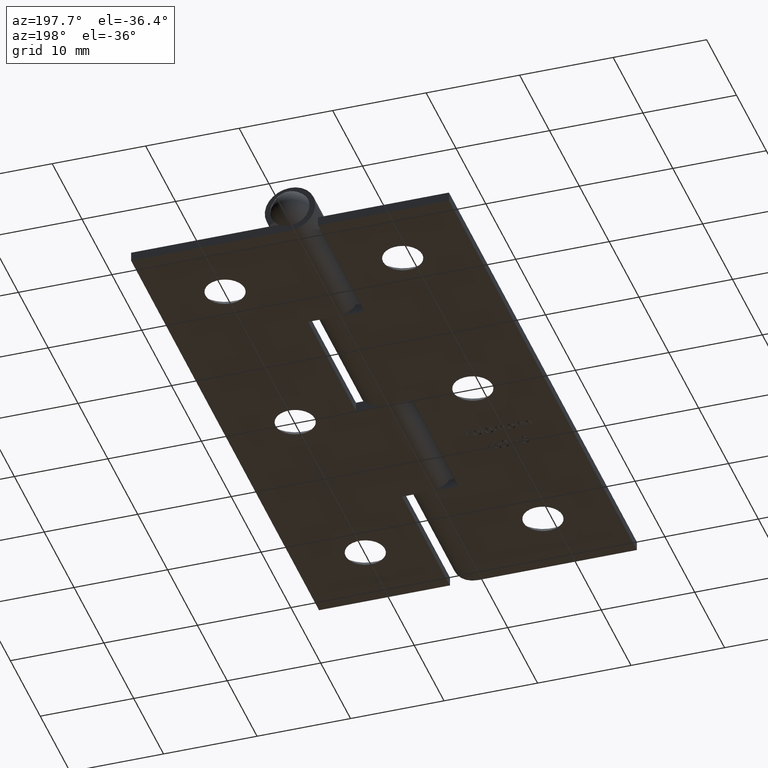
[diagram: clean part render]
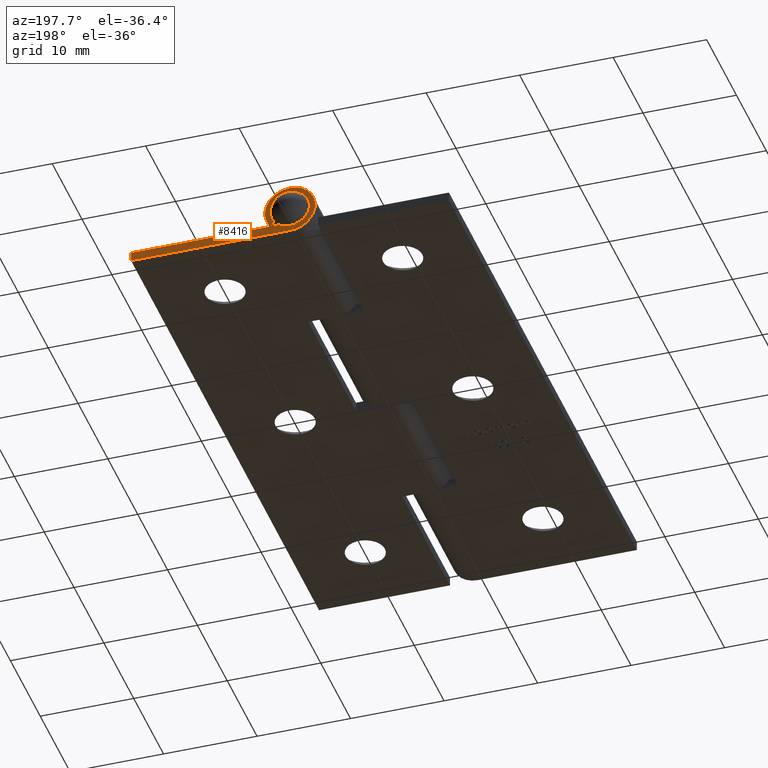
[diagram: same view with one face highlighted and labeled with its STEP entity id]
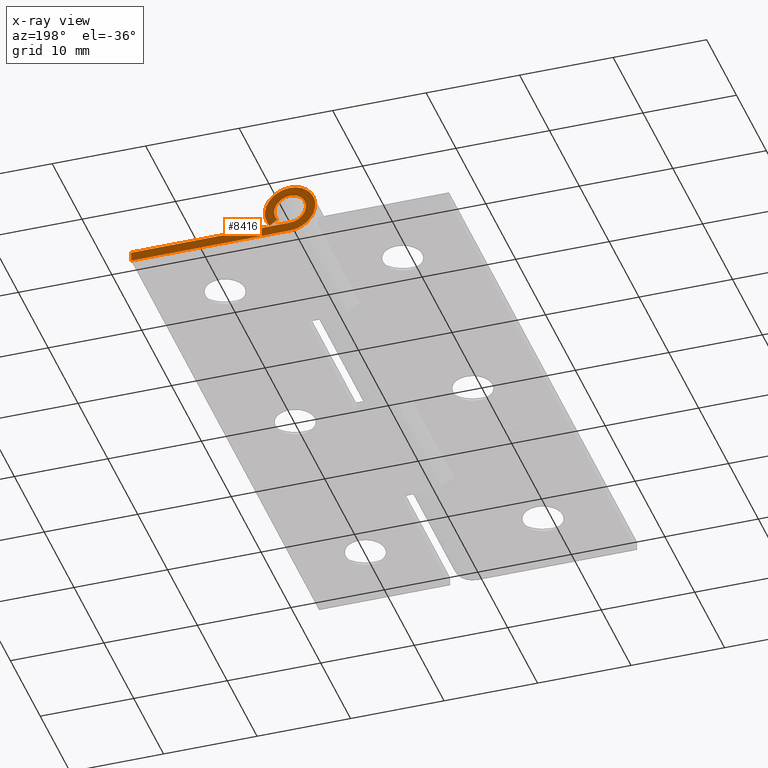
[diagram: x-ray of the same camera — body ghosted, the highlighted face saturated]
A machine part, auxiliary view. The second image highlights one B-rep face of the part: STEP entity #8416.
The next image is the same camera in x-ray: the body ghosted, the highlighted face saturated — about 0% of this face is hidden behind the body in this view.
In plain terms, the highlighted planar face has unit normal (0, 1, 0).
Its self-contained STEP definition (entity closure, byte-faithful):
#15 = CARTESIAN_POINT ( 'NONE',  ( -2.700000000000000178, -31.50000000000000000, 2.700000000000000178 ) ) ;
#46 = DIRECTION ( 'NONE',  ( -0.000000000000000000, -0.000000000000000000, 1.000000000000000000 ) ) ;
#272 = EDGE_CURVE ( 'NONE', #9687, #2001, #5282, .T. ) ;
#430 = CARTESIAN_POINT ( 'NONE',  ( -4.874856317093154701, -31.50000000000000000, 1.100000000000001199 ) ) ;
#602 = EDGE_CURVE ( 'NONE', #9249, #4822, #9213, .T. ) ;
#829 = CARTESIAN_POINT ( 'NONE',  ( -2.700000000000000178, -31.50000000000000000, 2.700000000000000178 ) ) ;
#1122 = CARTESIAN_POINT ( 'NONE',  ( -2.700000000000000178, -31.50000000000000000, 0.000000000000000000 ) ) ;
#1474 = ORIENTED_EDGE ( 'NONE', *, *, #11146, .F. ) ;
#2001 = VERTEX_POINT ( 'NONE', #7087 ) ;
#2282 = CARTESIAN_POINT ( 'NONE',  ( -4.069353977429024383, -31.50000000000000000, 1.692592592592593315 ) ) ;
#2466 = DIRECTION ( 'NONE',  ( -1.000000000000000000, 0.000000000000000000, 1.275531967630005245E-16 ) ) ;
#3009 = VECTOR ( 'NONE', #5865, 1000.000000000000000 ) ;
#3070 = CARTESIAN_POINT ( 'NONE',  ( -2.700000000000000178, -31.50000000000000000, 1.000000000000000000 ) ) ;
#3816 = CARTESIAN_POINT ( 'NONE',  ( -4.874856317093154701, -31.50000000000000000, 1.100000000000001199 ) ) ;
#3868 = EDGE_CURVE ( 'NONE', #4822, #9687, #8749, .T. ) ;
#4082 = DIRECTION ( 'NONE',  ( -0.8055023396641315392, -0.000000000000000000, -0.5925925925925922266 ) ) ;
#4128 = ORIENTED_EDGE ( 'NONE', *, *, #9682, .F. ) ;
#4247 = CARTESIAN_POINT ( 'NONE',  ( -2.700000000000000178, -31.50000000000000000, 0.000000000000000000 ) ) ;
#4361 = EDGE_LOOP ( 'NONE', ( #7570, #6854, #1474, #4128, #7360, #7406 ) ) ;
#4478 = FACE_OUTER_BOUND ( 'NONE', #4361, .T. ) ;
#4558 = DIRECTION ( 'NONE',  ( 0.000000000000000000, -0.000000000000000000, -1.000000000000000000 ) ) ;
#4822 = VERTEX_POINT ( 'NONE', #3816 ) ;
#5282 = LINE ( 'NONE', #4247, #6556 ) ;
#5826 = CARTESIAN_POINT ( 'NONE',  ( -2.700000000000000178, -31.50000000000000000, 1.000000000000000000 ) ) ;
#5865 = DIRECTION ( 'NONE',  ( 1.000000000000000000, -0.000000000000000000, -1.275531967630005245E-16 ) ) ;
#6005 = VECTOR ( 'NONE', #4082, 1000.000000000000114 ) ;
#6199 = EDGE_CURVE ( 'NONE', #2001, #7141, #9140, .T. ) ;
#6399 = LINE ( 'NONE', #5826, #3009 ) ;
#6425 = DIRECTION ( 'NONE',  ( 0.000000000000000000, 1.000000000000000000, -0.000000000000000000 ) ) ;
#6556 = VECTOR ( 'NONE', #2466, 1000.000000000000000 ) ;
#6752 = VECTOR ( 'NONE', #46, 1000.000000000000000 ) ;
#6854 = ORIENTED_EDGE ( 'NONE', *, *, #602, .F. ) ;
#6866 = AXIS2_PLACEMENT_3D ( 'NONE', #15, #6425, #8188 ) ;
#7087 = CARTESIAN_POINT ( 'NONE',  ( -19.70000000000000284, -31.50000000000000000, 2.168404344971008868E-15 ) ) ;
#7141 = VERTEX_POINT ( 'NONE', #9504 ) ;
#7360 = ORIENTED_EDGE ( 'NONE', *, *, #6199, .F. ) ;
#7385 = CARTESIAN_POINT ( 'NONE',  ( -19.70000000000000284, -31.50000000000000000, 1.000000000000002220 ) ) ;
#7406 = ORIENTED_EDGE ( 'NONE', *, *, #272, .F. ) ;
#7532 = VERTEX_POINT ( 'NONE', #3070 ) ;
#7570 = ORIENTED_EDGE ( 'NONE', *, *, #3868, .F. ) ;
#7602 = CARTESIAN_POINT ( 'NONE',  ( -2.700000000000000178, -31.50000000000000000, 2.700000000000000178 ) ) ;
#8188 = DIRECTION ( 'NONE',  ( 0.000000000000000000, 0.000000000000000000, -1.000000000000000000 ) ) ;
#8416 = ADVANCED_FACE ( 'NONE', ( #4478 ), #10876, .T. ) ;
#8749 = CIRCLE ( 'NONE', #6866, 2.700000000000000178 ) ;
#8758 = AXIS2_PLACEMENT_3D ( 'NONE', #829, #10833, #4558 ) ;
#9140 = LINE ( 'NONE', #7385, #6752 ) ;
#9213 = LINE ( 'NONE', #430, #6005 ) ;
#9249 = VERTEX_POINT ( 'NONE', #2282 ) ;
#9287 = DIRECTION ( 'NONE',  ( -0.000000000000000000, -1.000000000000000000, 0.000000000000000000 ) ) ;
#9444 = AXIS2_PLACEMENT_3D ( 'NONE', #7602, #9287, #10172 ) ;
#9504 = CARTESIAN_POINT ( 'NONE',  ( -19.70000000000000284, -31.50000000000000000, 1.000000000000002220 ) ) ;
#9682 = EDGE_CURVE ( 'NONE', #7141, #7532, #6399, .T. ) ;
#9687 = VERTEX_POINT ( 'NONE', #1122 ) ;
#10172 = DIRECTION ( 'NONE',  ( 0.000000000000000000, 0.000000000000000000, -1.000000000000000000 ) ) ;
#10315 = CIRCLE ( 'NONE', #9444, 1.700000000000000178 ) ;
#10833 = DIRECTION ( 'NONE',  ( 0.000000000000000000, -1.000000000000000000, 0.000000000000000000 ) ) ;
#10876 = PLANE ( 'NONE',  #8758 ) ;
#11146 = EDGE_CURVE ( 'NONE', #7532, #9249, #10315, .T. ) ;